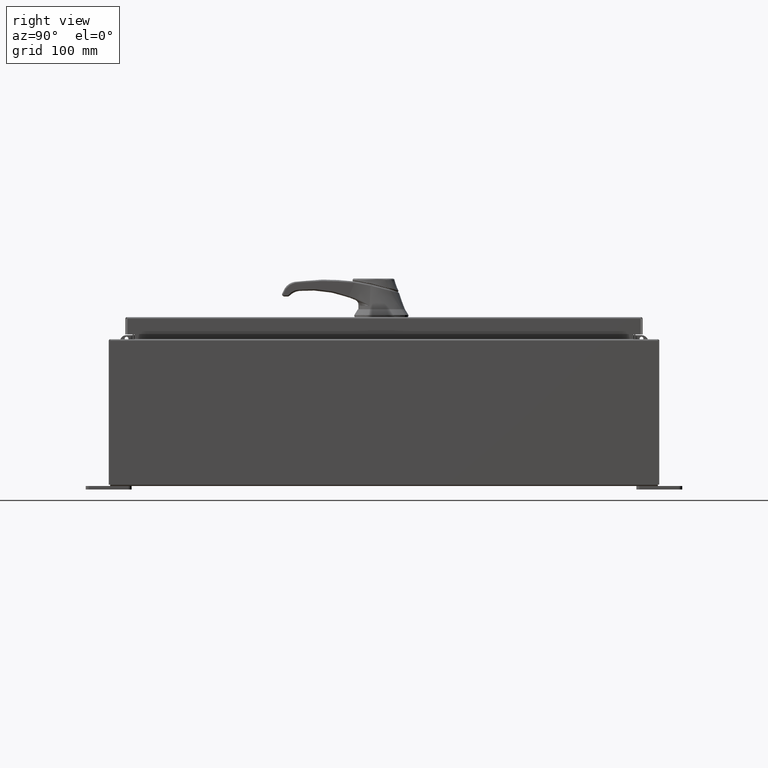
[diagram: clean part render]
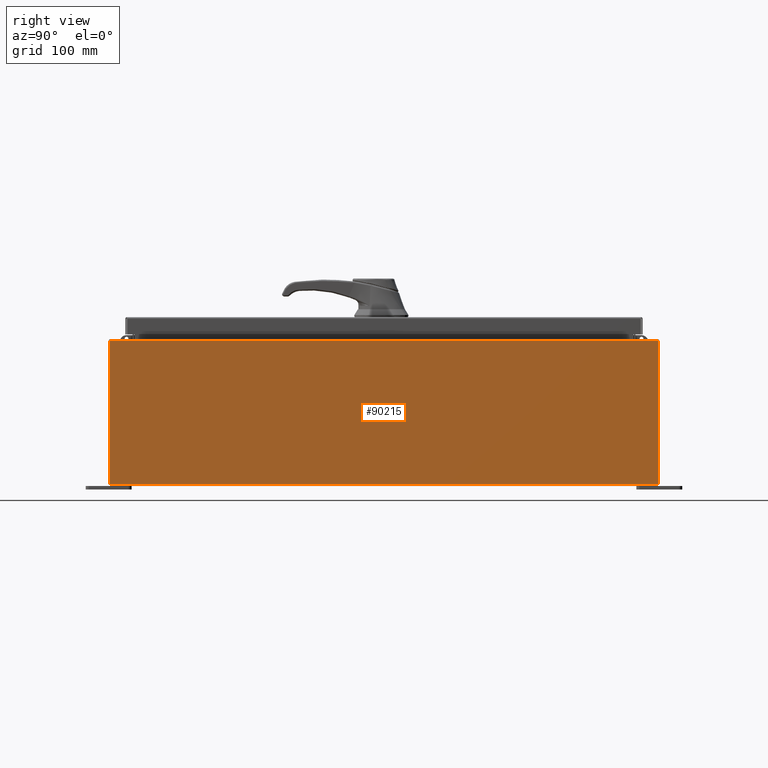
[diagram: same view with one face highlighted and labeled with its STEP entity id]
A machine part, right view. The second image highlights one B-rep face of the part: STEP entity #90215.
In plain terms, the highlighted planar face has unit normal (-1, 0, 0).
Its self-contained STEP definition (entity closure, byte-faithful):
#6877 = ORIENTED_EDGE ( 'NONE', *, *, #12324, .F. ) ;
#12324 = EDGE_CURVE ( 'NONE', #96981, #54425, #74627, .T. ) ;
#13142 = DIRECTION ( 'NONE',  ( -3.584876173029202900E-015, 0.0000000000000000000, -1.000000000000000000 ) ) ;
#14123 = DIRECTION ( 'NONE',  ( 3.584876173029202900E-015, 0.0000000000000000000, 1.000000000000000000 ) ) ;
#14618 = EDGE_LOOP ( 'NONE', ( #104781, #48737, #6877, #36324 ) ) ;
#26489 = VECTOR ( 'NONE', #28353, 39.37007874015748100 ) ;
#27144 = VERTEX_POINT ( 'NONE', #36356 ) ;
#28353 = DIRECTION ( 'NONE',  ( -0.0000000000000000000, -1.000000000000000000, -0.0000000000000000000 ) ) ;
#28426 = EDGE_CURVE ( 'NONE', #108864, #54425, #39103, .T. ) ;
#29470 = DIRECTION ( 'NONE',  ( -1.000000000000000000, 0.0000000000000000000, 3.584876173029202900E-015 ) ) ;
#30874 = EDGE_CURVE ( 'NONE', #27144, #108864, #68518, .T. ) ;
#36324 = ORIENTED_EDGE ( 'NONE', *, *, #63734, .T. ) ;
#36356 = CARTESIAN_POINT ( 'NONE',  ( 10.00000000000002800, 14.92530000000000700, 7.837599999999992100 ) ) ;
#37270 = LINE ( 'NONE', #59206, #100953 ) ;
#39103 = LINE ( 'NONE', #58236, #111284 ) ;
#48737 = ORIENTED_EDGE ( 'NONE', *, *, #28426, .T. ) ;
#54425 = VERTEX_POINT ( 'NONE', #111810 ) ;
#56344 = CARTESIAN_POINT ( 'NONE',  ( 10.00000000000000000, 0.0000000000000000000, -3.610957538630361200E-014 ) ) ;
#56384 = FACE_OUTER_BOUND ( 'NONE', #14618, .T. ) ;
#58236 = CARTESIAN_POINT ( 'NONE',  ( 10.00000000000000000, -14.92529999999999600, -3.610957538630361200E-014 ) ) ;
#59206 = CARTESIAN_POINT ( 'NONE',  ( 10.00000000000000000, 14.92530000000000500, -3.610957538630361200E-014 ) ) ;
#63734 = EDGE_CURVE ( 'NONE', #96981, #27144, #37270, .T. ) ;
#68518 = LINE ( 'NONE', #78864, #113779 ) ;
#74627 = LINE ( 'NONE', #91592, #26489 ) ;
#78864 = CARTESIAN_POINT ( 'NONE',  ( 10.00000000000002800, 14.92530000000000700, 7.837599999999992100 ) ) ;
#83655 = PLANE ( 'NONE',  #112497 ) ;
#87917 = DIRECTION ( 'NONE',  ( -0.0000000000000000000, -1.000000000000000000, -0.0000000000000000000 ) ) ;
#90215 = ADVANCED_FACE ( 'NONE', ( #56384 ), #83655, .F. ) ;
#91592 = CARTESIAN_POINT ( 'NONE',  ( 10.00000000000000000, -14.92529999999999600, 0.01299999999999984700 ) ) ;
#92260 = CARTESIAN_POINT ( 'NONE',  ( 10.00000000000002800, -14.92529999999999800, 7.837599999999998300 ) ) ;
#92733 = DIRECTION ( 'NONE',  ( 3.584876173029202900E-015, 0.0000000000000000000, 1.000000000000000000 ) ) ;
#96981 = VERTEX_POINT ( 'NONE', #99895 ) ;
#99895 = CARTESIAN_POINT ( 'NONE',  ( 10.00000000000000000, 14.92530000000000500, 0.01299999999999984700 ) ) ;
#100953 = VECTOR ( 'NONE', #14123, 39.37007874015748100 ) ;
#104781 = ORIENTED_EDGE ( 'NONE', *, *, #30874, .T. ) ;
#108864 = VERTEX_POINT ( 'NONE', #92260 ) ;
#111284 = VECTOR ( 'NONE', #13142, 39.37007874015748100 ) ;
#111810 = CARTESIAN_POINT ( 'NONE',  ( 10.00000000000000000, -14.92529999999999600, 0.01299999999999983600 ) ) ;
#112497 = AXIS2_PLACEMENT_3D ( 'NONE', #56344, #29470, #92733 ) ;
#113779 = VECTOR ( 'NONE', #87917, 39.37007874015748100 ) ;